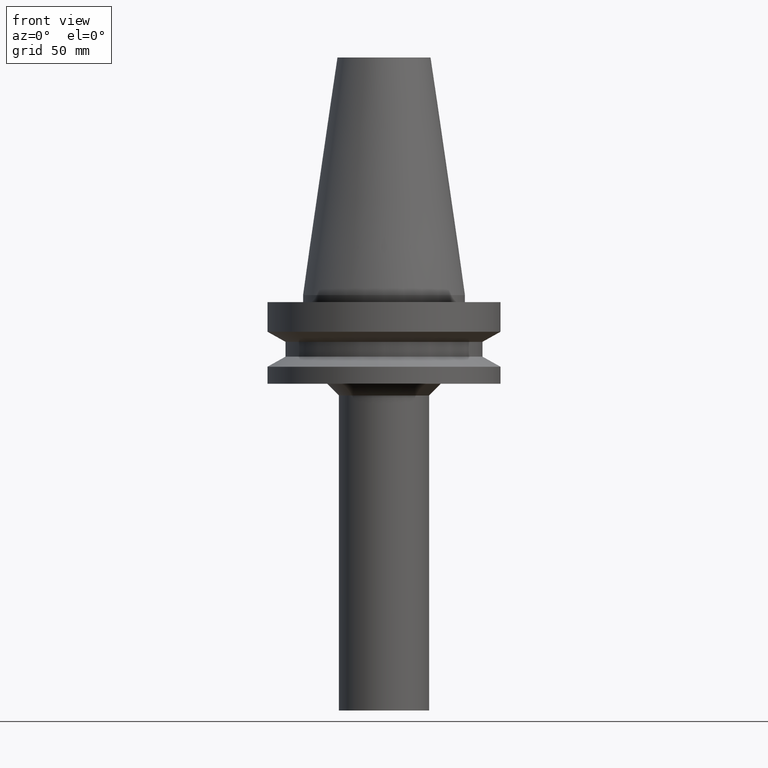
[diagram: clean part render]
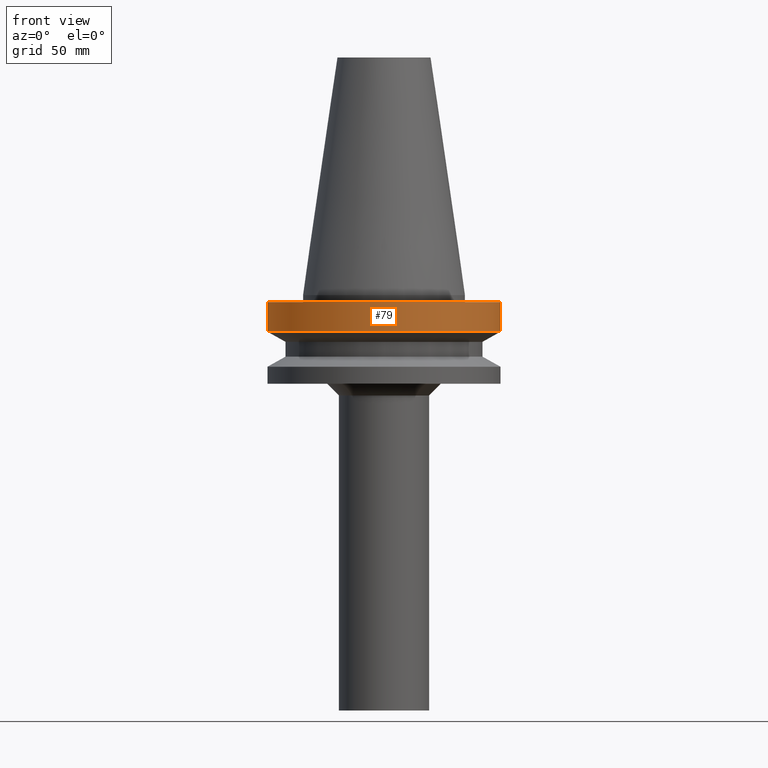
[diagram: same view with one face highlighted and labeled with its STEP entity id]
A machine part, front view. The second image highlights one B-rep face of the part: STEP entity #79.
In plain terms, the highlighted cylindrical surface (bore or boss wall) has radius 50 mm, axis along (-0, -0, 1).
Its self-contained STEP definition (entity closure, byte-faithful):
#79=ADVANCED_FACE('',(#100,#101),#102,.T.);
#100=FACE_BOUND('',#137,.T.);
#101=FACE_BOUND('',#138,.T.);
#102=CYLINDRICAL_SURFACE('',#139,50.0);
#137=EDGE_LOOP('',(#182));
#138=EDGE_LOOP('',(#183));
#139=AXIS2_PLACEMENT_3D('',#184,#185,#186);
#182=ORIENTED_EDGE('',*,*,#230,.F.);
#183=ORIENTED_EDGE('',*,*,#229,.T.);
#184=CARTESIAN_POINT('',(5.72522378601387E-016,1.14504475720277E-015,-9.34999999999999));
#185=DIRECTION('',(-6.12323399573677E-017,-1.22464679914735E-016,1.0));
#186=DIRECTION('',(-1.23259516440783E-032,1.0,1.22464679914735E-016));
#229=EDGE_CURVE('',#244,#244,#245,.T.);
#230=EDGE_CURVE('',#246,#246,#247,.T.);
#244=VERTEX_POINT('',#268);
#245=CIRCLE('',#269,50.0);
#246=VERTEX_POINT('',#270);
#247=CIRCLE('',#271,50.0);
#268=CARTESIAN_POINT('',(1.83697019872102E-016,50.0,-2.99999999999999));
#269=AXIS2_PLACEMENT_3D('',#295,#296,#297);
#270=CARTESIAN_POINT('',(9.61347737330672E-016,50.0,-15.7));
#271=AXIS2_PLACEMENT_3D('',#298,#299,#300);
#295=CARTESIAN_POINT('',(1.83697019872103E-016,3.67394039744206E-016,-3.0));
#296=DIRECTION('',(6.12323399573677E-017,1.22464679914735E-016,-1.0));
#297=DIRECTION('',(-1.23259516440783E-032,1.0,1.22464679914735E-016));
#298=CARTESIAN_POINT('',(9.61347737330672E-016,1.92269547466134E-015,-15.7));
#299=DIRECTION('',(6.12323399573677E-017,1.22464679914735E-016,-1.0));
#300=DIRECTION('',(-1.23259516440783E-032,1.0,1.22464679914735E-016));